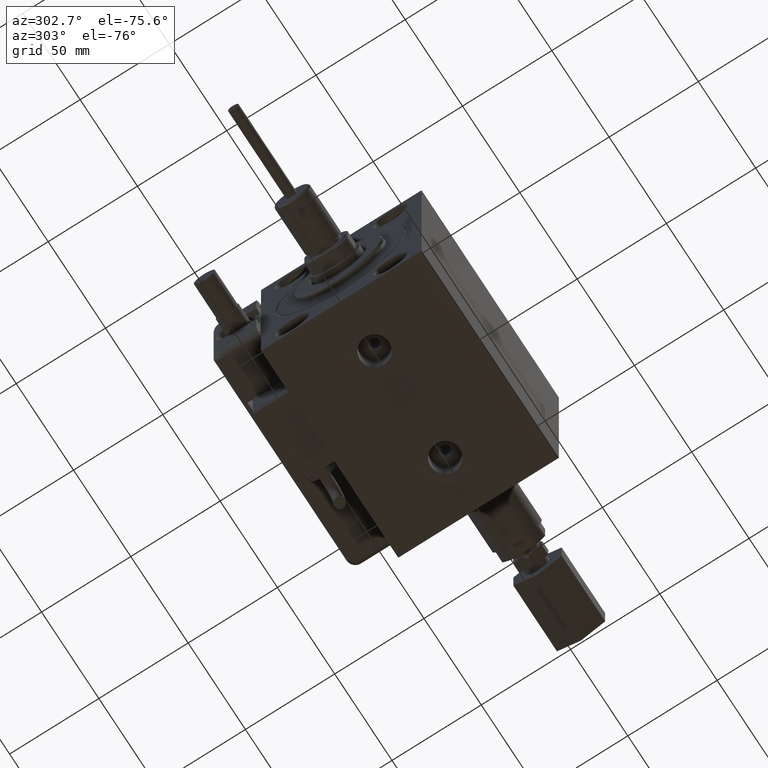
[diagram: clean part render]
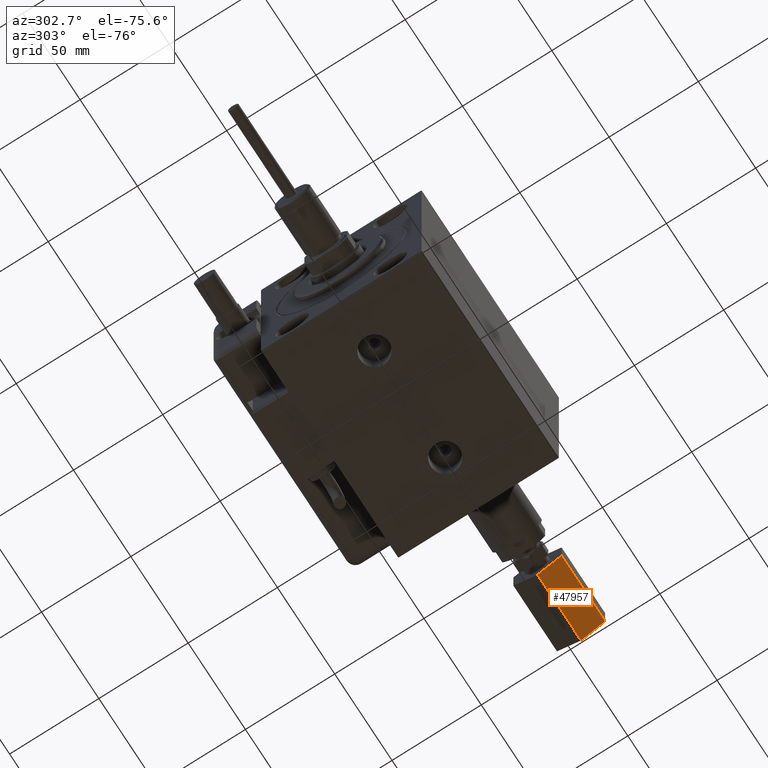
[diagram: same view with one face highlighted and labeled with its STEP entity id]
A machine part, auxiliary view. The second image highlights one B-rep face of the part: STEP entity #47957.
In plain terms, the highlighted planar face has unit normal (0, 0.5, 0.866).
Its self-contained STEP definition (entity closure, byte-faithful):
#3721 = CARTESIAN_POINT ( 'NONE',  ( 90.50000000000000000, 7.794228634059952476, -13.49999999999999822 ) ) ;
#3922 = DIRECTION ( 'NONE',  ( -1.000000000000000000, -0.000000000000000000, -0.000000000000000000 ) ) ;
#5171 = DIRECTION ( 'NONE',  ( 0.000000000000000000, 0.4999999999999996669, 0.8660254037844388186 ) ) ;
#6044 = AXIS2_PLACEMENT_3D ( 'NONE', #20910, #59200, #39740 ) ;
#9816 = CARTESIAN_POINT ( 'NONE',  ( 52.50000000000000711, 7.794228634059952476, -13.49999999999999822 ) ) ;
#10279 = CARTESIAN_POINT ( 'NONE',  ( 90.50000000000000000, 7.794228634059952476, -13.49999999999999822 ) ) ;
#12274 = CARTESIAN_POINT ( 'NONE',  ( 90.50000000000000000, 7.794228634059952476, -13.49999999999999822 ) ) ;
#13582 = ORIENTED_EDGE ( 'NONE', *, *, #33598, .F. ) ;
#14283 = VECTOR ( 'NONE', #41726, 1000.000000000000000 ) ;
#14319 = LINE ( 'NONE', #10279, #56122 ) ;
#15291 = EDGE_LOOP ( 'NONE', ( #52766, #13582, #16252, #57779 ) ) ;
#16252 = ORIENTED_EDGE ( 'NONE', *, *, #37754, .F. ) ;
#16743 = VERTEX_POINT ( 'NONE', #31240 ) ;
#18243 = VERTEX_POINT ( 'NONE', #40683 ) ;
#18406 = VECTOR ( 'NONE', #3922, 1000.000000000000000 ) ;
#20762 = EDGE_CURVE ( 'NONE', #49149, #16743, #41949, .T. ) ;
#20910 = CARTESIAN_POINT ( 'NONE',  ( 90.50000000000000000, 7.794228634059952476, -13.49999999999999822 ) ) ;
#25430 = EDGE_CURVE ( 'NONE', #36572, #49149, #27211, .T. ) ;
#27211 = LINE ( 'NONE', #3721, #14283 ) ;
#28969 = VECTOR ( 'NONE', #5171, 1000.000000000000114 ) ;
#31240 = CARTESIAN_POINT ( 'NONE',  ( 52.50000000000000711, 15.58845726811989252, 0.000000000000000000 ) ) ;
#33598 = EDGE_CURVE ( 'NONE', #18243, #16743, #46269, .T. ) ;
#34799 = PLANE ( 'NONE',  #6044 ) ;
#36572 = VERTEX_POINT ( 'NONE', #12274 ) ;
#37754 = EDGE_CURVE ( 'NONE', #36572, #18243, #14319, .T. ) ;
#39740 = DIRECTION ( 'NONE',  ( 0.000000000000000000, -0.4999999999999997224, -0.8660254037844388186 ) ) ;
#40683 = CARTESIAN_POINT ( 'NONE',  ( 90.50000000000000000, 15.58845726811989252, 0.000000000000000000 ) ) ;
#41317 = CARTESIAN_POINT ( 'NONE',  ( 90.50000000000000000, 15.58845726811989252, 0.000000000000000000 ) ) ;
#41726 = DIRECTION ( 'NONE',  ( -1.000000000000000000, -0.000000000000000000, -0.000000000000000000 ) ) ;
#41949 = LINE ( 'NONE', #9816, #28969 ) ;
#46269 = LINE ( 'NONE', #41317, #18406 ) ;
#47957 = ADVANCED_FACE ( 'NONE', ( #53680 ), #34799, .F. ) ;
#49149 = VERTEX_POINT ( 'NONE', #50469 ) ;
#50469 = CARTESIAN_POINT ( 'NONE',  ( 52.50000000000000711, 7.794228634059952476, -13.49999999999999822 ) ) ;
#52766 = ORIENTED_EDGE ( 'NONE', *, *, #20762, .T. ) ;
#53680 = FACE_OUTER_BOUND ( 'NONE', #15291, .T. ) ;
#56122 = VECTOR ( 'NONE', #56657, 1000.000000000000114 ) ;
#56657 = DIRECTION ( 'NONE',  ( 0.000000000000000000, 0.4999999999999996669, 0.8660254037844388186 ) ) ;
#57779 = ORIENTED_EDGE ( 'NONE', *, *, #25430, .T. ) ;
#59200 = DIRECTION ( 'NONE',  ( 0.000000000000000000, -0.8660254037844388186, 0.4999999999999997224 ) ) ;